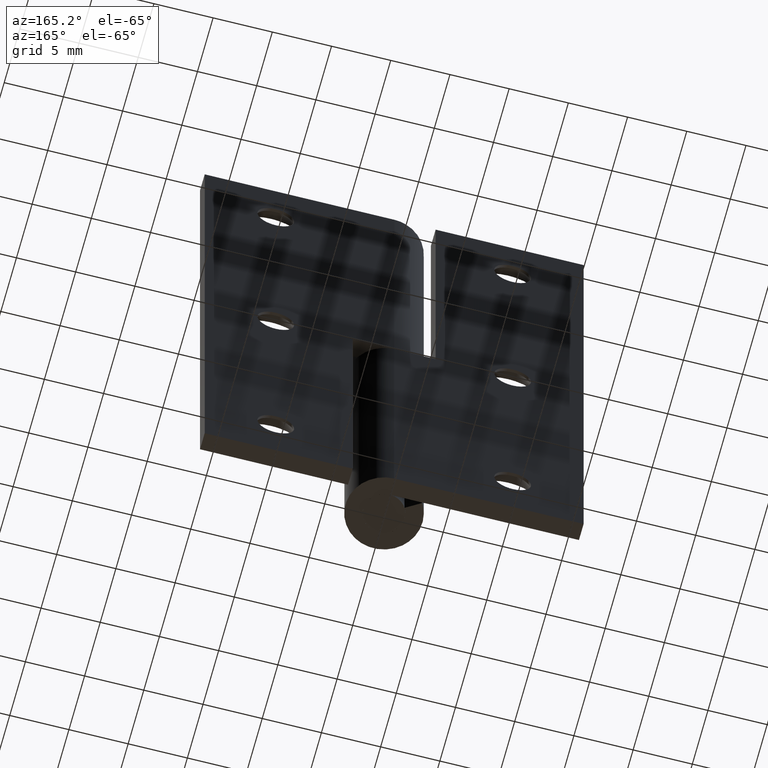
[diagram: clean part render]
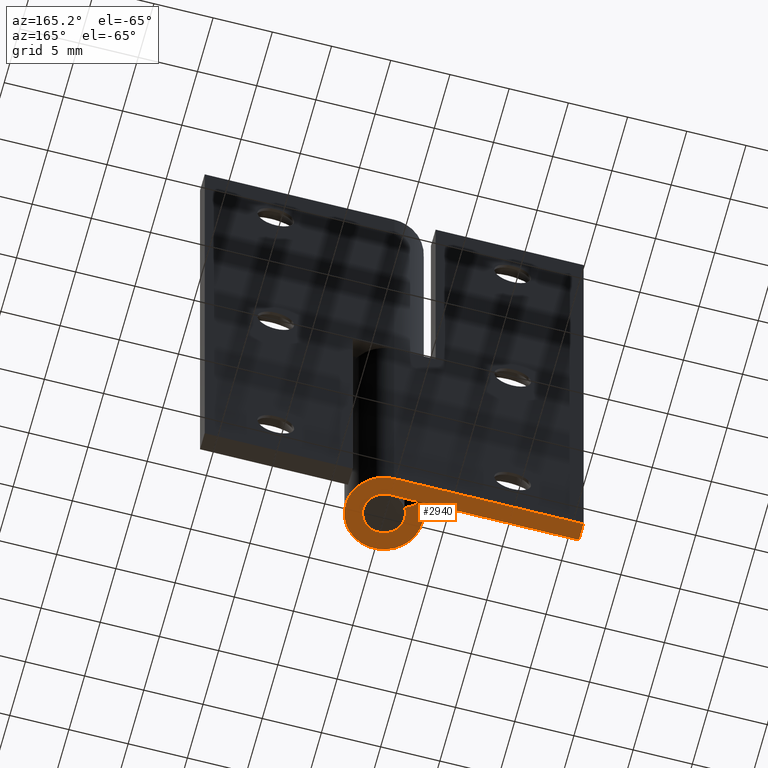
[diagram: same view with one face highlighted and labeled with its STEP entity id]
A machine part, auxiliary view. The second image highlights one B-rep face of the part: STEP entity #2940.
In plain terms, the highlighted face is a freeform B-spline surface patch.
Its self-contained STEP definition (entity closure, byte-faithful):
#2863=CARTESIAN_POINT('',(-16.961532194753890,-3.574232170899443,0.0));
#2864=CARTESIAN_POINT('',(4.211427246890525,-3.574232170899443,0.0));
#2865=CARTESIAN_POINT('',(-16.961532194753890,3.574654095318016,0.0));
#2866=CARTESIAN_POINT('',(4.211427246890525,3.574654095318016,0.0));
#2867=B_SPLINE_SURFACE_WITH_KNOTS('',1,1,((#2863,#2865),(#2864,#2866)),.UNSPECIFIED.,.F.,.F.,.U.,(2,2),(2,2),(0.0,21.172959441644419),(0.0,7.148886266217460),.UNSPECIFIED.);
#2868=CARTESIAN_POINT('',(-1.491499582942340,0.915384615384608,0.0));
#2869=VERTEX_POINT('',#2868);
#2870=CARTESIAN_POINT('',(-2.769927796892910,1.700000000000000,0.0));
#2871=VERTEX_POINT('',#2870);
#2872=CARTESIAN_POINT('',(-1.491499582942340,0.915384615384608,0.0));
#2873=CARTESIAN_POINT('',(-2.769927796892910,1.700000000000000,0.0));
#2874=QUASI_UNIFORM_CURVE('',1,(#2872,#2873),.UNSPECIFIED.,.F.,.U.);
#2875=EDGE_CURVE('',#2869,#2871,#2874,.T.);
#2876=ORIENTED_EDGE('',*,*,#2875,.F.);
#2877=CARTESIAN_POINT('',(0.0,1.750000000000000,0.0));
#2878=VERTEX_POINT('',#2877);
#2879=CARTESIAN_POINT('',(0.0,1.750000000000000,0.0));
#2880=CARTESIAN_POINT('',(1.352180954002865,1.750000000000000,0.0));
#2881=CARTESIAN_POINT('',(1.693373332936189,0.441573046392762,0.0));
#2882=CARTESIAN_POINT('',(2.034565711869512,-0.866853907214476,0.0));
#2883=CARTESIAN_POINT('',(0.854569167205598,-1.527157993942189,0.0));
#2884=CARTESIAN_POINT('',(-0.325427377458317,-2.187462080669903,0.0));
#2885=CARTESIAN_POINT('',(-1.262110806631844,-1.212260826630605,0.0));
#2886=CARTESIAN_POINT('',(-2.198794235805371,-0.237059572591306,0.0));
#2887=CARTESIAN_POINT('',(-1.491499582942340,0.915384615384608,0.0));
#2895=(BOUNDED_CURVE()B_SPLINE_CURVE(2,(#2879,#2880,#2881,#2882,#2883,#2884,#2885,#2886,#2887),.UNSPECIFIED.,.F.,.U.)B_SPLINE_CURVE_WITH_KNOTS((3,2,2,2,3),(0.0,0.250000000000000,0.500000000000000,0.750000000000000,1.0),.UNSPECIFIED.)CURVE()GEOMETRIC_REPRESENTATION_ITEM()RATIONAL_B_SPLINE_CURVE((1.0,0.791305078677490,1.0,0.791305078677490,1.0,0.791305078677490,1.0,0.791305078677490,1.0))REPRESENTATION_ITEM(''));
#2896=EDGE_CURVE('',#2878,#2869,#2895,.T.);
#2897=ORIENTED_EDGE('',*,*,#2896,.F.);
#2898=CARTESIAN_POINT('',(-16.0,1.750000000000000,0.0));
#2899=VERTEX_POINT('',#2898);
#2900=CARTESIAN_POINT('',(-16.0,1.750000000000000,0.0));
#2901=CARTESIAN_POINT('',(0.0,1.750000000000000,0.0));
#2902=QUASI_UNIFORM_CURVE('',1,(#2900,#2901),.UNSPECIFIED.,.F.,.U.);
#2903=EDGE_CURVE('',#2899,#2878,#2902,.T.);
#2904=ORIENTED_EDGE('',*,*,#2903,.F.);
#2905=CARTESIAN_POINT('',(-16.0,3.250000000000000,0.0));
#2906=VERTEX_POINT('',#2905);
#2907=CARTESIAN_POINT('',(-16.0,3.250000000000000,0.0));
#2908=CARTESIAN_POINT('',(-16.0,1.750000000000000,0.0));
#2909=QUASI_UNIFORM_CURVE('',1,(#2907,#2908),.UNSPECIFIED.,.F.,.U.);
#2910=EDGE_CURVE('',#2906,#2899,#2909,.T.);
#2911=ORIENTED_EDGE('',*,*,#2910,.F.);
#2912=CARTESIAN_POINT('',(-2.687581E-015,3.250000000000000,0.0));
#2913=VERTEX_POINT('',#2912);
#2914=CARTESIAN_POINT('',(-2.687581E-015,3.250000000000000,0.0));
#2915=CARTESIAN_POINT('',(-16.0,3.250000000000000,0.0));
#2916=QUASI_UNIFORM_CURVE('',1,(#2914,#2915),.UNSPECIFIED.,.F.,.U.);
#2917=EDGE_CURVE('',#2913,#2906,#2916,.T.);
#2918=ORIENTED_EDGE('',*,*,#2917,.F.);
#2919=CARTESIAN_POINT('',(0.0,3.250000000000000,0.0));
#2920=CARTESIAN_POINT('',(2.511193200291035,3.250000000000000,0.0));
#2921=CARTESIAN_POINT('',(3.144836189738636,0.820064229015129,0.0));
#2922=CARTESIAN_POINT('',(3.778479179186236,-1.609871541969744,0.0));
#2923=CARTESIAN_POINT('',(1.587057024810393,-2.836150560178353,0.0));
#2924=CARTESIAN_POINT('',(-0.604365129565455,-4.062429578386966,0.0));
#2925=CARTESIAN_POINT('',(-2.343920069459146,-2.251341535171115,0.0));
#2926=CARTESIAN_POINT('',(-4.083475009352835,-0.440253491955268,0.0));
#2927=CARTESIAN_POINT('',(-2.769927796892911,1.699999999999996,0.0));
#2935=(BOUNDED_CURVE()B_SPLINE_CURVE(2,(#2919,#2920,#2921,#2922,#2923,#2924,#2925,#2926,#2927),.UNSPECIFIED.,.F.,.U.)B_SPLINE_CURVE_WITH_KNOTS((3,2,2,2,3),(0.0,0.250000000000000,0.500000000000000,0.750000000000000,1.0),.UNSPECIFIED.)CURVE()GEOMETRIC_REPRESENTATION_ITEM()RATIONAL_B_SPLINE_CURVE((1.0,0.791305078677490,1.0,0.791305078677490,1.0,0.791305078677490,1.0,0.791305078677490,1.0))REPRESENTATION_ITEM(''));
#2936=EDGE_CURVE('',#2913,#2871,#2935,.T.);
#2937=ORIENTED_EDGE('',*,*,#2936,.T.);
#2938=EDGE_LOOP('',(#2876,#2897,#2904,#2911,#2918,#2937));
#2939=FACE_OUTER_BOUND('',#2938,.T.);
#2940=ADVANCED_FACE('',(#2939),#2867,.F.);